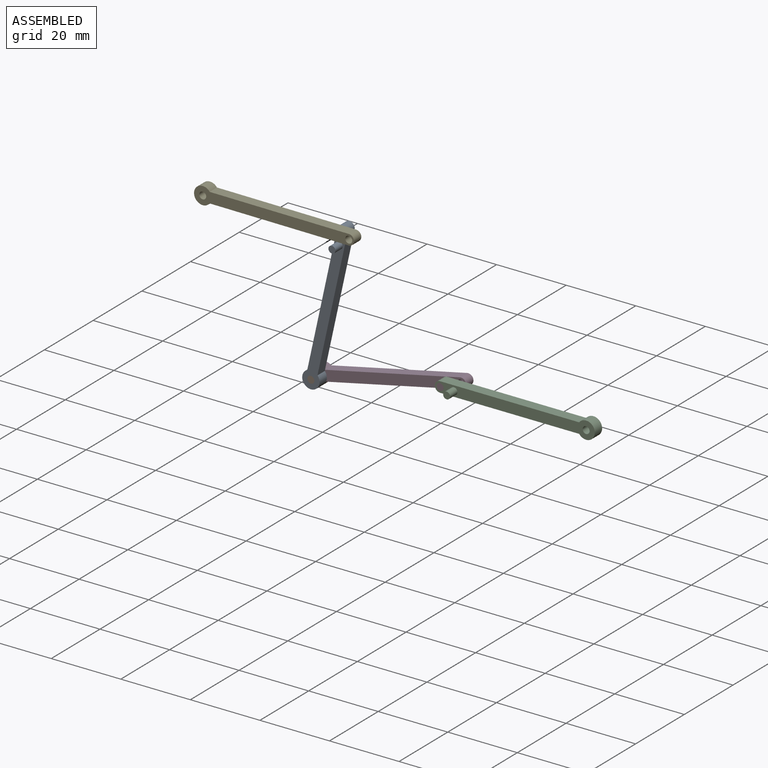
[diagram: assembled view]
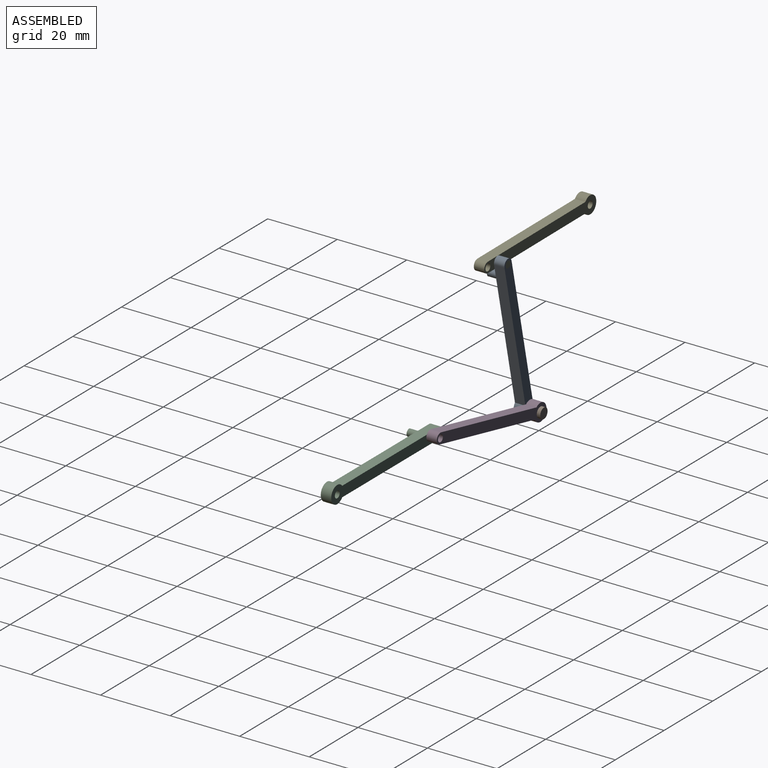
[diagram: assembled view, second angle]
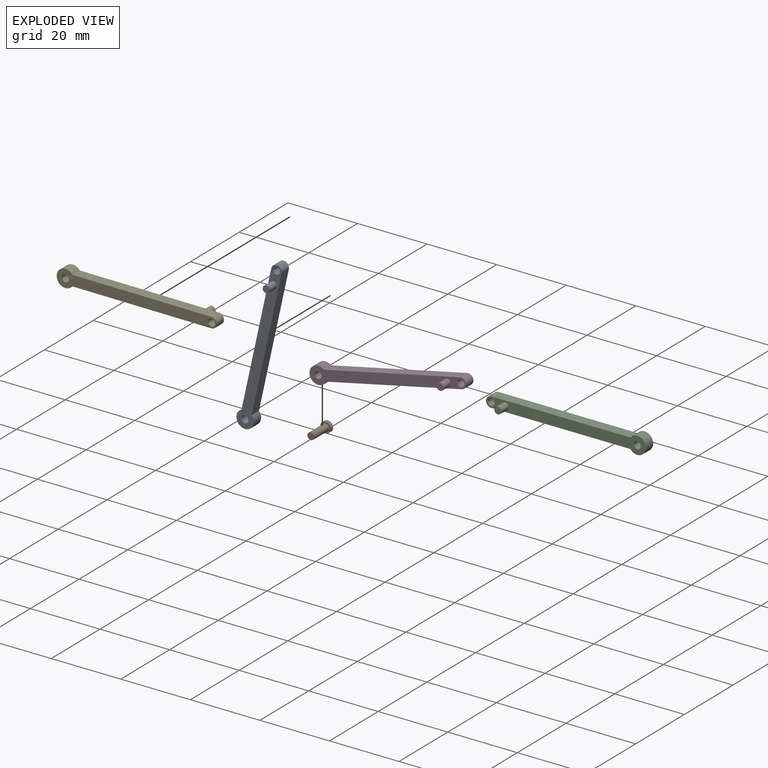
[diagram: exploded view]
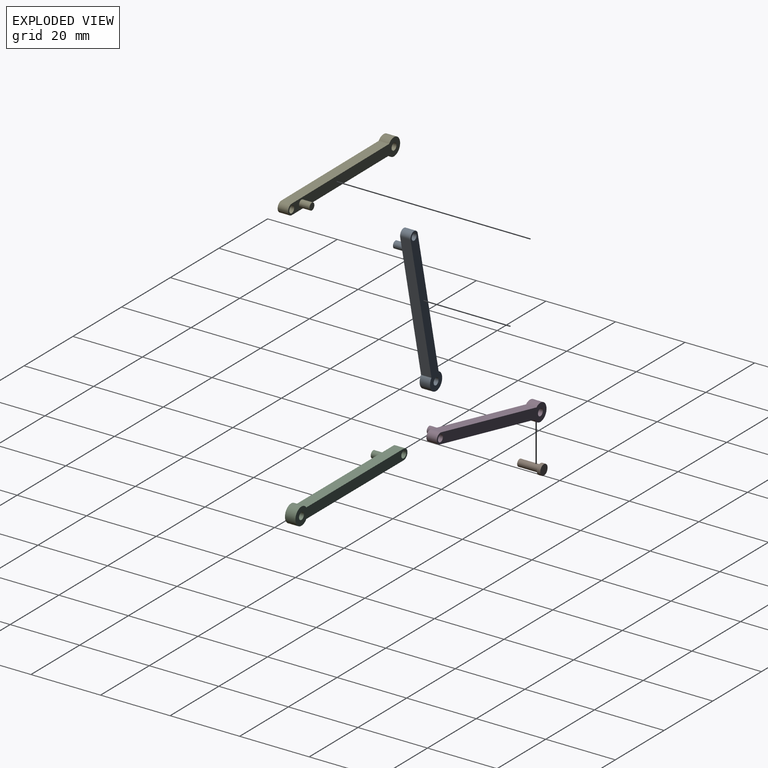
[diagram: exploded view, second angle]
ASSEMBLY  parts=5 mates=6
PART A: 10 faces, bbox 46x6x5 mm
  f0: cylinder r=1.5mm len=3mm, axis (0,1,0), area 14.1mm2, adj f1,f3,f6,f7
  f1: plane 40x3mm, normal (0,0,-1), area 120mm2, adj f0,f2,f6,f7
  f2: cylinder r=2.5mm len=5mm, axis (0,1,0), area 37.5mm2, adj f1,f3,f6,f7
  f3: plane 40x3mm, normal (0,0,1), area 120mm2, adj f0,f2,f6,f7
  f4: cylinder r=1mm len=3mm, axis (0,1,0), area 18.8mm2, adj f6,f7
  f5: cylinder r=1mm len=3mm, axis (0,1,0), area 18.8mm2, adj f6,f7
  f6: plane 46x5mm, normal (0,-1,0), area 132.7mm2, adj f0,f1,f2,f3,f4,f5,f8
  f7: plane 46x5mm, normal (0,1,0), area 135.9mm2, adj f0,f1,f2,f3,f4,f5
  f8: cylinder r=1mm len=3mm, axis (0,1,0), area 18.8mm2, adj f6,f9
  f9: plane 2x2mm, normal (0,-1,0), area 3.1mm2, adj f8
PART B: 5 faces, bbox 3x7x3 mm
  f0: cylinder r=1.5mm len=3mm, axis (0,1,0), area 9.4mm2, adj f1,f2
  f1: plane 3x3mm, normal (0,-1,0), area 3.9mm2, adj f0,f3
  f2: plane 3x3mm, normal (0,1,0), area 7.1mm2, adj f0
  f3: cylinder r=1mm len=6mm, axis (0,1,0), area 37.7mm2, adj f1,f4
  f4: plane 2x2mm, normal (0,-1,0), area 3.1mm2, adj f3
PART C: same geometry as A
PART D: same geometry as A
PART E: same geometry as A
PLACE A rot(axis=(0,1,0),102.4deg) t=(12.16,-6.33,16.05)mm
PLACE B rot(axis=(0,1,0),124deg) t=(3.16,-2.33,-24.97)mm
PLACE C rot(axis=(0,-1,0),0deg) t=(40.3,-6.33,-16.93)mm
PLACE D rot(axis=(0,1,0),167.8deg) t=(44.21,-3.33,-16.08)mm
PLACE E rot(axis=(0,0,-1),180deg) t=(16.16,-12.33,16.03)mm
MATE revolute C.f0 <-> D.f8  axis (0,1,0) through (40.3,-6.33,-16.93)mm
MATE planar D.f4 <-> A.f4  axis (0,-1,0) through (44.21,-6.33,-16.08)mm
MATE revolute E.f8 <-> A.f0  axis (0,-1,0) through (12.16,-6.33,16.05)mm
MATE revolute B.f0 <-> D.f5  axis (0,-1,0) through (3.16,-3.33,-24.97)mm
MATE revolute B.f3 <-> A.f5  axis (0,1,0) through (3.16,-6.33,-24.97)mm
MATE planar E.f8 <-> A.f4  axis (0,-1,0) through (12.16,-9.33,16.05)mm
